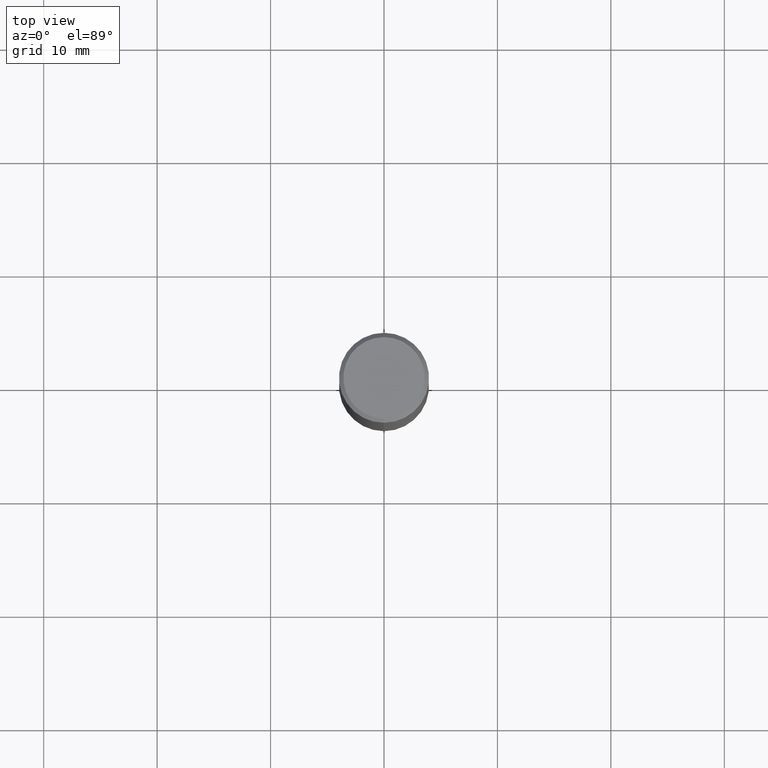
[diagram: clean part render]
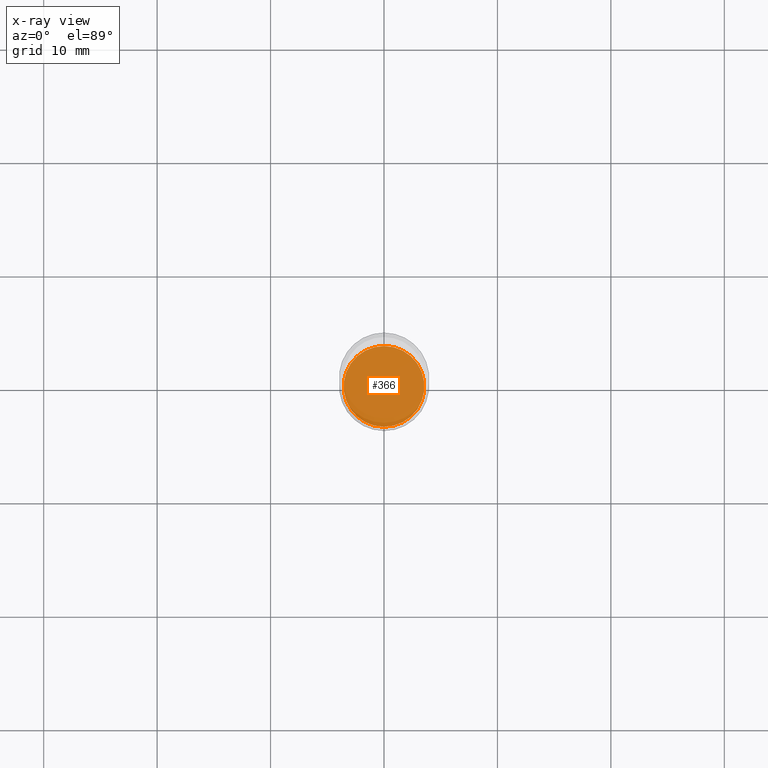
[diagram: x-ray — body ghosted, one internal face saturated and labeled with its STEP entity id]
A machine part, top view, then the same camera in x-ray: the body is ghosted and one INTERNAL B-rep face — a face not visible from any outside direction — is saturated and labeled: STEP entity #366.
In plain terms, the highlighted planar face has unit normal (-0, 0, 1).
Its self-contained STEP definition (entity closure, byte-faithful):
#11 = EDGE_CURVE ( 'NONE', #120, #456, #127, .T. ) ;
#17 = DIRECTION ( 'NONE',  ( -6.982962677686265922E-15, -1.000000000000000000, 3.899854380677035588E-15 ) ) ;
#47 = DIRECTION ( 'NONE',  ( -2.445561747179421972E-29, 3.491348242049456041E-15, 1.000000000000000000 ) ) ;
#55 = DIRECTION ( 'NONE',  ( -2.445561747179421972E-29, 3.491348242049455647E-15, 1.000000000000000000 ) ) ;
#62 = CARTESIAN_POINT ( 'NONE',  ( 4.279733057563989082E-29, -6.109859423586548565E-15, -1.750000000000000222 ) ) ;
#81 = ORIENTED_EDGE ( 'NONE', *, *, #11, .F. ) ;
#120 = VERTEX_POINT ( 'NONE', #479 ) ;
#127 = CIRCLE ( 'NONE', #231, 0.1401000000000000023 ) ;
#137 = FACE_OUTER_BOUND ( 'NONE', #323, .T. ) ;
#140 = PLANE ( 'NONE',  #162 ) ;
#162 = AXIS2_PLACEMENT_3D ( 'NONE', #62, #55, #258 ) ;
#164 = CARTESIAN_POINT ( 'NONE',  ( 4.279733057563989082E-29, -6.109859423586548565E-15, -1.750000000000000222 ) ) ;
#173 = EDGE_CURVE ( 'NONE', #456, #120, #399, .T. ) ;
#204 = AXIS2_PLACEMENT_3D ( 'NONE', #164, #47, #17 ) ;
#231 = AXIS2_PLACEMENT_3D ( 'NONE', #272, #461, #316 ) ;
#240 = ORIENTED_EDGE ( 'NONE', *, *, #173, .F. ) ;
#258 = DIRECTION ( 'NONE',  ( -6.982962677686265922E-15, -1.000000000000000000, 3.491348242049455647E-15 ) ) ;
#272 = CARTESIAN_POINT ( 'NONE',  ( 4.279733057563989082E-29, -6.109859423586548565E-15, -1.750000000000000222 ) ) ;
#316 = DIRECTION ( 'NONE',  ( -6.982962677686265922E-15, -1.000000000000000000, 3.899854380677035588E-15 ) ) ;
#323 = EDGE_LOOP ( 'NONE', ( #240, #81 ) ) ;
#366 = ADVANCED_FACE ( 'NONE', ( #137 ), #140, .F. ) ;
#393 = CARTESIAN_POINT ( 'NONE',  ( -9.783130711438031058E-16, -0.1401000000000061085, -1.749999999999999556 ) ) ;
#399 = CIRCLE ( 'NONE', #204, 0.1401000000000000023 ) ;
#456 = VERTEX_POINT ( 'NONE', #393 ) ;
#461 = DIRECTION ( 'NONE',  ( -2.445561747179421972E-29, 3.491348242049456041E-15, 1.000000000000000000 ) ) ;
#479 = CARTESIAN_POINT ( 'NONE',  ( 9.972467296393428329E-16, 0.1400999999999938961, -1.750000000000000666 ) ) ;